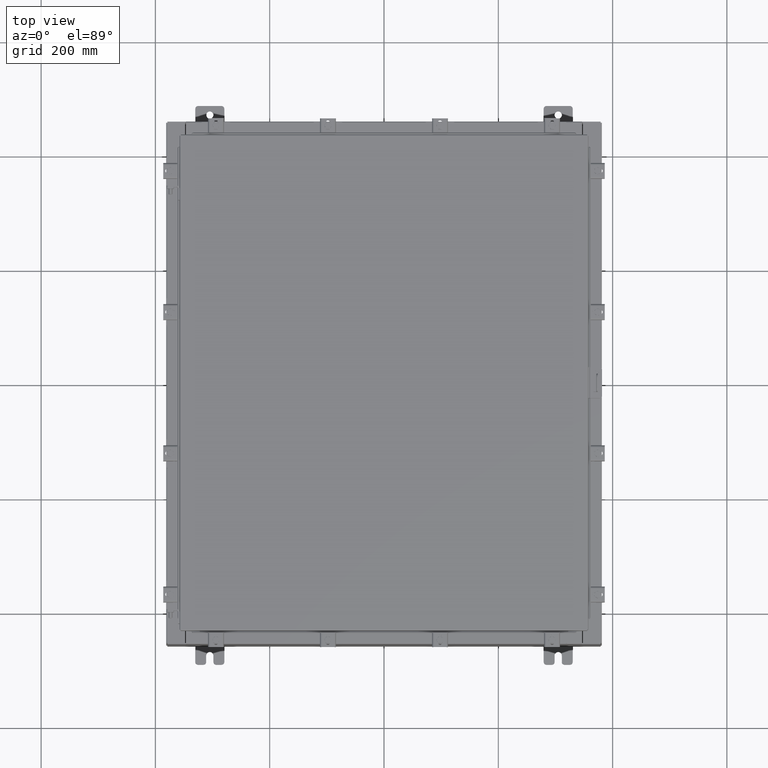
[diagram: clean part render]
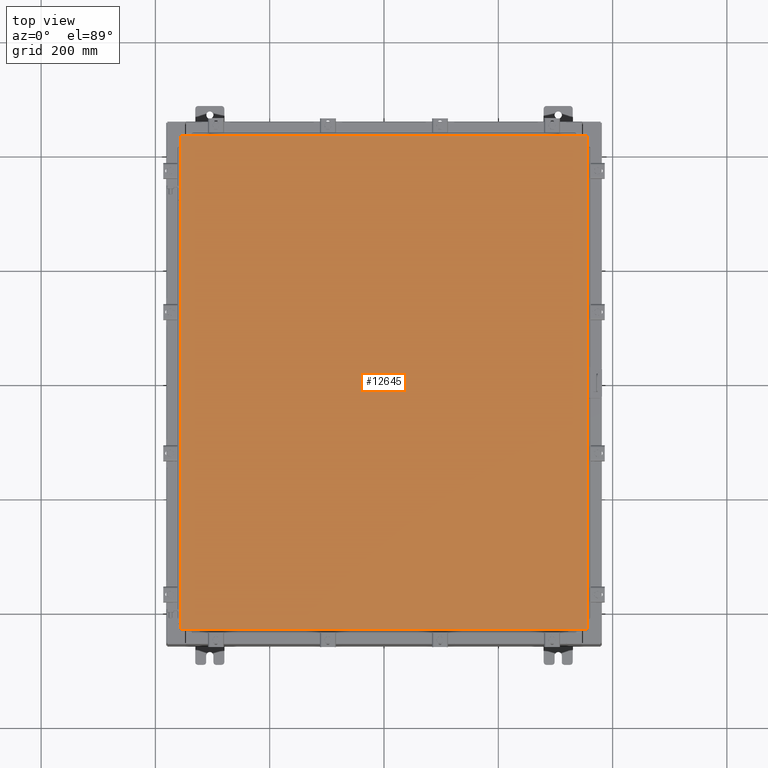
[diagram: same view with one face highlighted and labeled with its STEP entity id]
A machine part, top view. The second image highlights one B-rep face of the part: STEP entity #12645.
In plain terms, the highlighted planar face has unit normal (0, 0, -1).
Its self-contained STEP definition (entity closure, byte-faithful):
#426 = VERTEX_POINT ( 'NONE', #24262 ) ;
#1665 = CARTESIAN_POINT ( 'NONE',  ( 13.99029999999999600, 17.00629999999999600, 8.878505979408856000E-016 ) ) ;
#2085 = VERTEX_POINT ( 'NONE', #11255 ) ;
#2473 = DIRECTION ( 'NONE',  ( 1.000000000000000000, -0.0000000000000000000, -0.0000000000000000000 ) ) ;
#3509 = DIRECTION ( 'NONE',  ( -1.000000000000000000, -0.0000000000000000000, -0.0000000000000000000 ) ) ;
#5068 = DIRECTION ( 'NONE',  ( -1.000000000000000000, 0.0000000000000000000, -0.0000000000000000000 ) ) ;
#5379 = EDGE_CURVE ( 'NONE', #10372, #426, #23862, .T. ) ;
#5423 = LINE ( 'NONE', #18890, #19934 ) ;
#6195 = CARTESIAN_POINT ( 'NONE',  ( -13.99029999999999800, -17.00630000000000300, -2.048885995248197400E-016 ) ) ;
#7671 = VECTOR ( 'NONE', #8573, 39.37007874015748100 ) ;
#8573 = DIRECTION ( 'NONE',  ( 0.0000000000000000000, 1.000000000000000000, 0.0000000000000000000 ) ) ;
#8791 = VECTOR ( 'NONE', #2473, 39.37007874015748100 ) ;
#10372 = VERTEX_POINT ( 'NONE', #19834 ) ;
#11255 = CARTESIAN_POINT ( 'NONE',  ( 13.99029999999999600, 17.00629999999999600, 8.878505979408856000E-016 ) ) ;
#11757 = VECTOR ( 'NONE', #3509, 39.37007874015748100 ) ;
#12605 = PLANE ( 'NONE',  #14528 ) ;
#12645 = ADVANCED_FACE ( 'NONE', ( #14620 ), #12605, .F. ) ;
#13152 = ORIENTED_EDGE ( 'NONE', *, *, #16893, .T. ) ;
#14524 = CARTESIAN_POINT ( 'NONE',  ( 0.0000000000000000000, 0.0000000000000000000, 0.0000000000000000000 ) ) ;
#14528 = AXIS2_PLACEMENT_3D ( 'NONE', #14524, #16446, #5068 ) ;
#14620 = FACE_OUTER_BOUND ( 'NONE', #16673, .T. ) ;
#16083 = EDGE_CURVE ( 'NONE', #426, #2085, #22202, .T. ) ;
#16446 = DIRECTION ( 'NONE',  ( 0.0000000000000000000, 0.0000000000000000000, -1.000000000000000000 ) ) ;
#16673 = EDGE_LOOP ( 'NONE', ( #21910, #17841, #13152, #19899 ) ) ;
#16893 = EDGE_CURVE ( 'NONE', #2085, #20003, #17401, .T. ) ;
#17401 = LINE ( 'NONE', #1665, #11757 ) ;
#17841 = ORIENTED_EDGE ( 'NONE', *, *, #16083, .T. ) ;
#18890 = CARTESIAN_POINT ( 'NONE',  ( -13.99030000000000000, 17.00630000000000000, -2.048885995248197400E-016 ) ) ;
#18902 = EDGE_CURVE ( 'NONE', #20003, #10372, #5423, .T. ) ;
#19228 = CARTESIAN_POINT ( 'NONE',  ( -13.99030000000000000, 17.00630000000000000, -2.048885995248197400E-016 ) ) ;
#19834 = CARTESIAN_POINT ( 'NONE',  ( -13.99029999999999800, -17.00630000000000300, -2.048885995248197400E-016 ) ) ;
#19899 = ORIENTED_EDGE ( 'NONE', *, *, #18902, .T. ) ;
#19903 = CARTESIAN_POINT ( 'NONE',  ( 13.99029999999999800, -17.00630000000000700, -2.048885995248197400E-016 ) ) ;
#19934 = VECTOR ( 'NONE', #20870, 39.37007874015748100 ) ;
#20003 = VERTEX_POINT ( 'NONE', #19228 ) ;
#20870 = DIRECTION ( 'NONE',  ( 0.0000000000000000000, -1.000000000000000000, 0.0000000000000000000 ) ) ;
#21910 = ORIENTED_EDGE ( 'NONE', *, *, #5379, .T. ) ;
#22202 = LINE ( 'NONE', #19903, #7671 ) ;
#23862 = LINE ( 'NONE', #6195, #8791 ) ;
#24262 = CARTESIAN_POINT ( 'NONE',  ( 13.99029999999999800, -17.00630000000000700, -2.048885995248197400E-016 ) ) ;